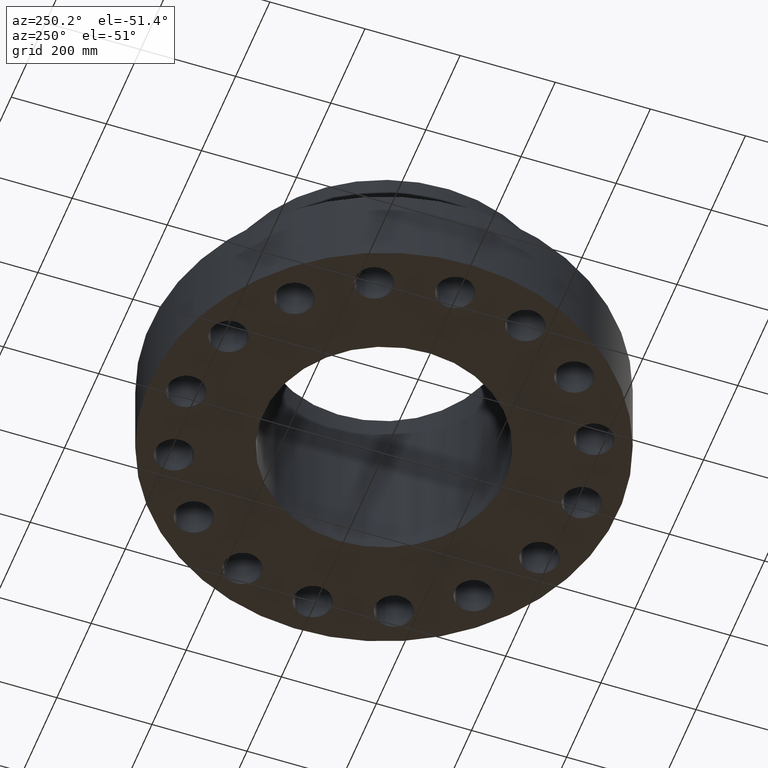
[diagram: clean part render]
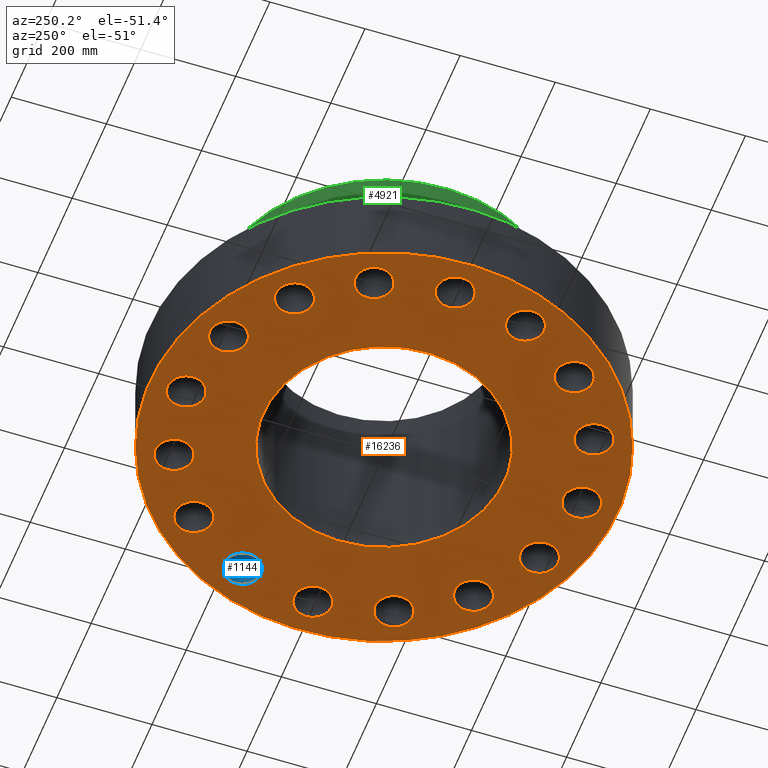
[diagram: same view with three faces highlighted in distinct colors, each labeled with its STEP entity id]
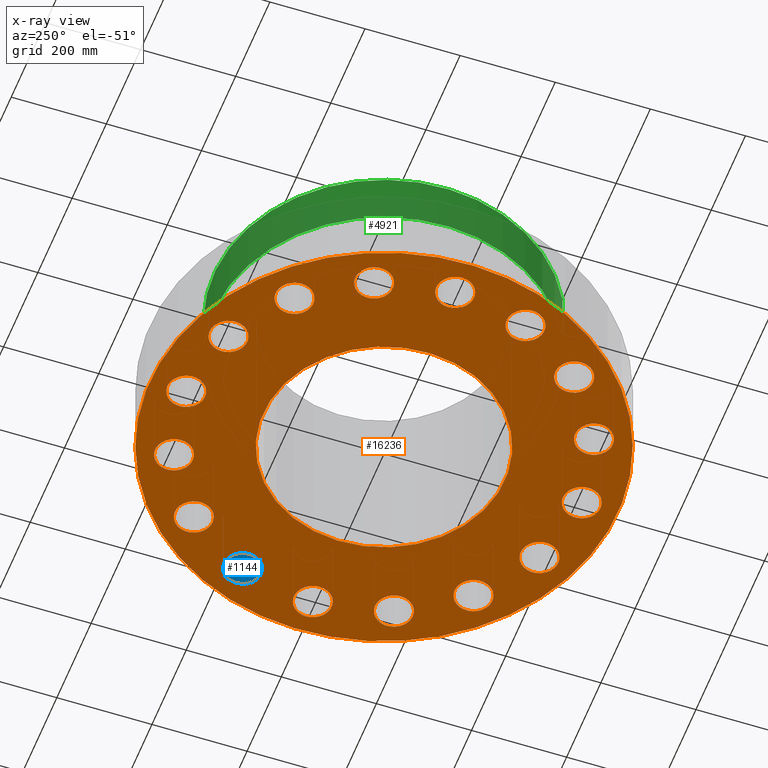
[diagram: x-ray of the same camera — body ghosted, the three highlighted faces saturated]
A machine part, auxiliary view with three faces highlighted in distinct colors.
The next image is the same camera in x-ray (body ghosted, the three faces saturated) — at least one of them is partly hidden behind the body in this view.
Their STEP definitions:

[orange] entity #16236 — the highlighted planar face has unit normal (0, 0, 1).
#65=AXIS2_PLACEMENT_3D('Circle Axis2P3D',#63,#64,$) ;
#82=AXIS2_PLACEMENT_3D('Circle Axis2P3D',#80,#81,$) ;
#433=AXIS2_PLACEMENT_3D('Circle Axis2P3D',#431,#432,$) ;
#459=AXIS2_PLACEMENT_3D('Circle Axis2P3D',#457,#458,$) ;
#533=AXIS2_PLACEMENT_3D('Circle Axis2P3D',#531,#532,$) ;
#545=AXIS2_PLACEMENT_3D('Circle Axis2P3D',#543,#544,$) ;
#576=AXIS2_PLACEMENT_3D('Circle Axis2P3D',#574,#575,$) ;
#588=AXIS2_PLACEMENT_3D('Circle Axis2P3D',#586,#587,$) ;
#619=AXIS2_PLACEMENT_3D('Circle Axis2P3D',#617,#618,$) ;
#631=AXIS2_PLACEMENT_3D('Circle Axis2P3D',#629,#630,$) ;
#662=AXIS2_PLACEMENT_3D('Circle Axis2P3D',#660,#661,$) ;
#674=AXIS2_PLACEMENT_3D('Circle Axis2P3D',#672,#673,$) ;
#705=AXIS2_PLACEMENT_3D('Circle Axis2P3D',#703,#704,$) ;
#717=AXIS2_PLACEMENT_3D('Circle Axis2P3D',#715,#716,$) ;
#748=AXIS2_PLACEMENT_3D('Circle Axis2P3D',#746,#747,$) ;
#760=AXIS2_PLACEMENT_3D('Circle Axis2P3D',#758,#759,$) ;
#791=AXIS2_PLACEMENT_3D('Circle Axis2P3D',#789,#790,$) ;
#803=AXIS2_PLACEMENT_3D('Circle Axis2P3D',#801,#802,$) ;
#834=AXIS2_PLACEMENT_3D('Circle Axis2P3D',#832,#833,$) ;
#846=AXIS2_PLACEMENT_3D('Circle Axis2P3D',#844,#845,$) ;
#877=AXIS2_PLACEMENT_3D('Circle Axis2P3D',#875,#876,$) ;
#889=AXIS2_PLACEMENT_3D('Circle Axis2P3D',#887,#888,$) ;
#920=AXIS2_PLACEMENT_3D('Circle Axis2P3D',#918,#919,$) ;
#932=AXIS2_PLACEMENT_3D('Circle Axis2P3D',#930,#931,$) ;
#963=AXIS2_PLACEMENT_3D('Circle Axis2P3D',#961,#962,$) ;
#975=AXIS2_PLACEMENT_3D('Circle Axis2P3D',#973,#974,$) ;
#1006=AXIS2_PLACEMENT_3D('Circle Axis2P3D',#1004,#1005,$) ;
#1018=AXIS2_PLACEMENT_3D('Circle Axis2P3D',#1016,#1017,$) ;
#1049=AXIS2_PLACEMENT_3D('Circle Axis2P3D',#1047,#1048,$) ;
#1061=AXIS2_PLACEMENT_3D('Circle Axis2P3D',#1059,#1060,$) ;
#1092=AXIS2_PLACEMENT_3D('Circle Axis2P3D',#1090,#1091,$) ;
#1104=AXIS2_PLACEMENT_3D('Circle Axis2P3D',#1102,#1103,$) ;
#1135=AXIS2_PLACEMENT_3D('Circle Axis2P3D',#1133,#1134,$) ;
#1147=AXIS2_PLACEMENT_3D('Circle Axis2P3D',#1145,#1146,$) ;
#16123=AXIS2_PLACEMENT_3D('Circle Axis2P3D',#16121,#16122,$) ;
#16149=AXIS2_PLACEMENT_3D('Circle Axis2P3D',#16147,#16148,$) ;
#16162=AXIS2_PLACEMENT_3D('Plane Axis2P3D',#16159,#16160,#16161) ;
#46=CARTESIAN_POINT('Vertex',(15.0059712035,-0.747903840226,2.2401153548E-016)) ;
#60=CARTESIAN_POINT('Vertex',(17.7440287966,0.747903840226,2.2401153548E-016)) ;
#63=CARTESIAN_POINT('Axis2P3D Location',(16.3750000001,0.,0.)) ;
#80=CARTESIAN_POINT('Axis2P3D Location',(16.3750000001,0.,0.)) ;
#431=CARTESIAN_POINT('Axis2P3D Location',(0.,0.,2.23792987641E-015)) ;
#435=CARTESIAN_POINT('Vertex',(-9.28886981049,-17.0031621367,1.1189649382E-015)) ;
#437=CARTESIAN_POINT('Vertex',(9.28886981049,17.0031621367,1.1189649382E-015)) ;
#457=CARTESIAN_POINT('Axis2P3D Location',(0.,0.,2.23792987641E-015)) ;
#521=CARTESIAN_POINT('Vertex',(13.5774992517,-6.4335096164,2.2401153548E-016)) ;
#528=CARTESIAN_POINT('Vertex',(16.6795554381,-6.0993727936,2.2401153548E-016)) ;
#531=CARTESIAN_POINT('Axis2P3D Location',(15.1285273449,-6.266441205,0.)) ;
#543=CARTESIAN_POINT('Axis2P3D Location',(15.1285273449,-6.266441205,0.)) ;
#564=CARTESIAN_POINT('Vertex',(10.0819761192,-11.1396718734,2.2401153548E-016)) ;
#571=CARTESIAN_POINT('Vertex',(13.0757709648,-12.0180752106,2.2401153548E-016)) ;
#574=CARTESIAN_POINT('Axis2P3D Location',(11.578873542,-11.578873542,0.)) ;
#586=CARTESIAN_POINT('Axis2P3D Location',(11.578873542,-11.578873542,0.)) ;
#607=CARTESIAN_POINT('Vertex',(5.05156351586,-14.149920069,2.2401153548E-016)) ;
#614=CARTESIAN_POINT('Vertex',(7.48131889415,-16.1071346208,2.2401153548E-016)) ;
#617=CARTESIAN_POINT('Axis2P3D Location',(6.266441205,-15.1285273449,0.)) ;
#629=CARTESIAN_POINT('Axis2P3D Location',(6.266441205,-15.1285273449,0.)) ;
#650=CARTESIAN_POINT('Vertex',(-0.747903840226,-15.0059712035,2.2401153548E-016)) ;
#657=CARTESIAN_POINT('Vertex',(0.747903840226,-17.7440287966,2.2401153548E-016)) ;
#660=CARTESIAN_POINT('Axis2P3D Location',(1.00267956681E-015,-16.3750000001,0.)) ;
#672=CARTESIAN_POINT('Axis2P3D Location',(1.00267956681E-015,-16.3750000001,0.)) ;
#693=CARTESIAN_POINT('Vertex',(-6.4335096164,-13.5774992517,2.2401153548E-016)) ;
#700=CARTESIAN_POINT('Vertex',(-6.0993727936,-16.6795554381,2.2401153548E-016)) ;
#703=CARTESIAN_POINT('Axis2P3D Location',(-6.266441205,-15.1285273449,0.)) ;
#715=CARTESIAN_POINT('Axis2P3D Location',(-6.266441205,-15.1285273449,0.)) ;
#736=CARTESIAN_POINT('Vertex',(-11.1396718734,-10.0819761192,2.2401153548E-016)) ;
#743=CARTESIAN_POINT('Vertex',(-12.0180752106,-13.0757709648,2.2401153548E-016)) ;
#746=CARTESIAN_POINT('Axis2P3D Location',(-11.578873542,-11.578873542,0.)) ;
#758=CARTESIAN_POINT('Axis2P3D Location',(-11.578873542,-11.578873542,0.)) ;
#779=CARTESIAN_POINT('Vertex',(-14.149920069,-5.05156351586,2.2401153548E-016)) ;
#786=CARTESIAN_POINT('Vertex',(-16.1071346208,-7.48131889415,2.2401153548E-016)) ;
#789=CARTESIAN_POINT('Axis2P3D Location',(-15.1285273449,-6.266441205,0.)) ;
#801=CARTESIAN_POINT('Axis2P3D Location',(-15.1285273449,-6.266441205,0.)) ;
#822=CARTESIAN_POINT('Vertex',(-15.0059712035,0.747903840226,2.2401153548E-016)) ;
#829=CARTESIAN_POINT('Vertex',(-17.7440287966,-0.747903840226,2.2401153548E-016)) ;
#832=CARTESIAN_POINT('Axis2P3D Location',(-16.3750000001,-2.00535913361E-015,0.)) ;
#844=CARTESIAN_POINT('Axis2P3D Location',(-16.3750000001,-2.00535913361E-015,0.)) ;
#865=CARTESIAN_POINT('Vertex',(-13.5774992517,6.4335096164,2.2401153548E-016)) ;
#872=CARTESIAN_POINT('Vertex',(-16.6795554381,6.0993727936,2.2401153548E-016)) ;
#875=CARTESIAN_POINT('Axis2P3D Location',(-15.1285273449,6.266441205,0.)) ;
#887=CARTESIAN_POINT('Axis2P3D Location',(-15.1285273449,6.266441205,0.)) ;
#908=CARTESIAN_POINT('Vertex',(-10.0819761192,11.1396718734,2.2401153548E-016)) ;
#915=CARTESIAN_POINT('Vertex',(-13.0757709648,12.0180752106,2.2401153548E-016)) ;
#918=CARTESIAN_POINT('Axis2P3D Location',(-11.578873542,11.578873542,0.)) ;
#930=CARTESIAN_POINT('Axis2P3D Location',(-11.578873542,11.578873542,0.)) ;
#951=CARTESIAN_POINT('Vertex',(-5.05156351586,14.149920069,2.2401153548E-016)) ;
#958=CARTESIAN_POINT('Vertex',(-7.48131889415,16.1071346208,2.2401153548E-016)) ;
#961=CARTESIAN_POINT('Axis2P3D Location',(-6.266441205,15.1285273449,0.)) ;
#973=CARTESIAN_POINT('Axis2P3D Location',(-6.266441205,15.1285273449,0.)) ;
#994=CARTESIAN_POINT('Vertex',(0.747903840226,15.0059712035,2.2401153548E-016)) ;
#1001=CARTESIAN_POINT('Vertex',(-0.747903840226,17.7440287966,2.2401153548E-016)) ;
#1004=CARTESIAN_POINT('Axis2P3D Location',(-7.70108824008E-016,16.3750000001,0.)) ;
#1016=CARTESIAN_POINT('Axis2P3D Location',(-7.70108824008E-016,16.3750000001,0.)) ;
#1037=CARTESIAN_POINT('Vertex',(6.4335096164,13.5774992517,2.22372426684E-016)) ;
#1044=CARTESIAN_POINT('Vertex',(6.0993727936,16.6795554381,2.22372426684E-016)) ;
#1047=CARTESIAN_POINT('Axis2P3D Location',(6.266441205,15.1285273449,-3.2782175924E-018)) ;
#1059=CARTESIAN_POINT('Axis2P3D Location',(6.266441205,15.1285273449,-3.2782175924E-018)) ;
#1080=CARTESIAN_POINT('Vertex',(11.1396718734,10.0819761192,2.2401153548E-016)) ;
#1087=CARTESIAN_POINT('Vertex',(12.0180752106,13.0757709648,2.2401153548E-016)) ;
#1090=CARTESIAN_POINT('Axis2P3D Location',(11.578873542,11.578873542,0.)) ;
#1102=CARTESIAN_POINT('Axis2P3D Location',(11.578873542,11.578873542,0.)) ;
#1123=CARTESIAN_POINT('Vertex',(14.149920069,5.05156351586,2.2401153548E-016)) ;
#1130=CARTESIAN_POINT('Vertex',(16.1071346208,7.48131889415,2.2401153548E-016)) ;
#1133=CARTESIAN_POINT('Axis2P3D Location',(15.1285273449,6.266441205,0.)) ;
#1145=CARTESIAN_POINT('Axis2P3D Location',(15.1285273449,6.266441205,0.)) ;
#16121=CARTESIAN_POINT('Axis2P3D Location',(0.,0.,0.)) ;
#16125=CARTESIAN_POINT('Vertex',(-4.79425538606,-8.77582561894,0.)) ;
#16127=CARTESIAN_POINT('Vertex',(4.79425538606,8.77582561894,0.)) ;
#16147=CARTESIAN_POINT('Axis2P3D Location',(0.,0.,0.)) ;
#16159=CARTESIAN_POINT('Axis2P3D Location',(0.,0.,0.)) ;
#64=DIRECTION('Axis2P3D Direction',(0.,-0.,0.0393700787402)) ;
#81=DIRECTION('Axis2P3D Direction',(0.,-0.,0.0393700787402)) ;
#432=DIRECTION('Axis2P3D Direction',(0.,0.,-0.0393700787402)) ;
#458=DIRECTION('Axis2P3D Direction',(0.,0.,-0.0393700787402)) ;
#532=DIRECTION('Axis2P3D Direction',(-0.,0.,0.0393700787402)) ;
#544=DIRECTION('Axis2P3D Direction',(-0.,0.,0.0393700787402)) ;
#575=DIRECTION('Axis2P3D Direction',(-0.,0.,0.0393700787402)) ;
#587=DIRECTION('Axis2P3D Direction',(-0.,0.,0.0393700787402)) ;
#618=DIRECTION('Axis2P3D Direction',(-0.,0.,0.0393700787402)) ;
#630=DIRECTION('Axis2P3D Direction',(-0.,0.,0.0393700787402)) ;
#661=DIRECTION('Axis2P3D Direction',(-0.,0.,0.0393700787402)) ;
#673=DIRECTION('Axis2P3D Direction',(-0.,0.,0.0393700787402)) ;
#704=DIRECTION('Axis2P3D Direction',(0.,0.,0.0393700787402)) ;
#716=DIRECTION('Axis2P3D Direction',(0.,0.,0.0393700787402)) ;
#747=DIRECTION('Axis2P3D Direction',(0.,0.,0.0393700787402)) ;
#759=DIRECTION('Axis2P3D Direction',(0.,0.,0.0393700787402)) ;
#790=DIRECTION('Axis2P3D Direction',(0.,0.,0.0393700787402)) ;
#802=DIRECTION('Axis2P3D Direction',(0.,0.,0.0393700787402)) ;
#833=DIRECTION('Axis2P3D Direction',(0.,0.,0.0393700787402)) ;
#845=DIRECTION('Axis2P3D Direction',(0.,0.,0.0393700787402)) ;
#876=DIRECTION('Axis2P3D Direction',(0.,0.,0.0393700787402)) ;
#888=DIRECTION('Axis2P3D Direction',(0.,0.,0.0393700787402)) ;
#919=DIRECTION('Axis2P3D Direction',(0.,0.,0.0393700787402)) ;
#931=DIRECTION('Axis2P3D Direction',(0.,0.,0.0393700787402)) ;
#962=DIRECTION('Axis2P3D Direction',(0.,0.,0.0393700787402)) ;
#974=DIRECTION('Axis2P3D Direction',(0.,0.,0.0393700787402)) ;
#1005=DIRECTION('Axis2P3D Direction',(0.,0.,0.0393700787402)) ;
#1017=DIRECTION('Axis2P3D Direction',(0.,0.,0.0393700787402)) ;
#1048=DIRECTION('Axis2P3D Direction',(0.,-0.,0.0393700787402)) ;
#1060=DIRECTION('Axis2P3D Direction',(0.,-0.,0.0393700787402)) ;
#1091=DIRECTION('Axis2P3D Direction',(0.,-0.,0.0393700787402)) ;
#1103=DIRECTION('Axis2P3D Direction',(0.,-0.,0.0393700787402)) ;
#1134=DIRECTION('Axis2P3D Direction',(0.,-0.,0.0393700787402)) ;
#1146=DIRECTION('Axis2P3D Direction',(0.,-0.,0.0393700787402)) ;
#16122=DIRECTION('Axis2P3D Direction',(0.,0.,-0.0393700787402)) ;
#16148=DIRECTION('Axis2P3D Direction',(0.,0.,-0.0393700787402)) ;
#16160=DIRECTION('Axis2P3D Direction',(0.,0.,0.0393700787402)) ;
#16161=DIRECTION('Axis2P3D XDirection',(0.0393700787402,0.,0.)) ;
#16165=ORIENTED_EDGE('',*,*,#461,.T.) ;
#16166=ORIENTED_EDGE('',*,*,#439,.T.) ;
#16169=ORIENTED_EDGE('',*,*,#1137,.F.) ;
#16170=ORIENTED_EDGE('',*,*,#1149,.F.) ;
#16173=ORIENTED_EDGE('',*,*,#1094,.F.) ;
#16174=ORIENTED_EDGE('',*,*,#1106,.F.) ;
#16177=ORIENTED_EDGE('',*,*,#1051,.F.) ;
#16178=ORIENTED_EDGE('',*,*,#1063,.F.) ;
#16181=ORIENTED_EDGE('',*,*,#1008,.F.) ;
#16182=ORIENTED_EDGE('',*,*,#1020,.F.) ;
#16185=ORIENTED_EDGE('',*,*,#965,.F.) ;
#16186=ORIENTED_EDGE('',*,*,#977,.F.) ;
#16189=ORIENTED_EDGE('',*,*,#922,.F.) ;
#16190=ORIENTED_EDGE('',*,*,#934,.F.) ;
#16193=ORIENTED_EDGE('',*,*,#879,.F.) ;
#16194=ORIENTED_EDGE('',*,*,#891,.F.) ;
#16197=ORIENTED_EDGE('',*,*,#836,.F.) ;
#16198=ORIENTED_EDGE('',*,*,#848,.F.) ;
#16201=ORIENTED_EDGE('',*,*,#793,.F.) ;
#16202=ORIENTED_EDGE('',*,*,#805,.F.) ;
#16205=ORIENTED_EDGE('',*,*,#750,.F.) ;
#16206=ORIENTED_EDGE('',*,*,#762,.F.) ;
#16209=ORIENTED_EDGE('',*,*,#707,.F.) ;
#16210=ORIENTED_EDGE('',*,*,#719,.F.) ;
#16213=ORIENTED_EDGE('',*,*,#664,.F.) ;
#16214=ORIENTED_EDGE('',*,*,#676,.F.) ;
#16217=ORIENTED_EDGE('',*,*,#621,.F.) ;
#16218=ORIENTED_EDGE('',*,*,#633,.F.) ;
#16221=ORIENTED_EDGE('',*,*,#578,.F.) ;
#16222=ORIENTED_EDGE('',*,*,#590,.F.) ;
#16225=ORIENTED_EDGE('',*,*,#535,.F.) ;
#16226=ORIENTED_EDGE('',*,*,#547,.F.) ;
#16229=ORIENTED_EDGE('',*,*,#84,.F.) ;
#16230=ORIENTED_EDGE('',*,*,#67,.F.) ;
#16233=ORIENTED_EDGE('',*,*,#16151,.T.) ;
#16234=ORIENTED_EDGE('',*,*,#16129,.T.) ;
#16171=FACE_BOUND('',#16168,.T.) ;
#16175=FACE_BOUND('',#16172,.T.) ;
#16179=FACE_BOUND('',#16176,.T.) ;
#16183=FACE_BOUND('',#16180,.T.) ;
#16187=FACE_BOUND('',#16184,.T.) ;
#16191=FACE_BOUND('',#16188,.T.) ;
#16195=FACE_BOUND('',#16192,.T.) ;
#16199=FACE_BOUND('',#16196,.T.) ;
#16203=FACE_BOUND('',#16200,.T.) ;
#16207=FACE_BOUND('',#16204,.T.) ;
#16211=FACE_BOUND('',#16208,.T.) ;
#16215=FACE_BOUND('',#16212,.T.) ;
#16219=FACE_BOUND('',#16216,.T.) ;
#16223=FACE_BOUND('',#16220,.T.) ;
#16227=FACE_BOUND('',#16224,.T.) ;
#16231=FACE_BOUND('',#16228,.T.) ;
#16235=FACE_BOUND('',#16232,.T.) ;
#16236=ADVANCED_FACE('PartBody',(#16167,#16171,#16175,#16179,#16183,#16187,#16191,#16195,#16199,#16203,#16207,#16211,#16215,#16219,#16223,#16227,#16231,#16235),#16163,.F.) ;
#66=CIRCLE('generated circle',#65,1.56000000001) ;
#83=CIRCLE('generated circle',#82,1.56000000001) ;
#434=CIRCLE('generated circle',#433,19.3750000001) ;
#460=CIRCLE('generated circle',#459,19.3750000001) ;
#534=CIRCLE('generated circle',#533,1.56000000001) ;
#546=CIRCLE('generated circle',#545,1.56000000001) ;
#577=CIRCLE('generated circle',#576,1.56000000001) ;
#589=CIRCLE('generated circle',#588,1.56000000001) ;
#620=CIRCLE('generated circle',#619,1.56000000001) ;
#632=CIRCLE('generated circle',#631,1.56000000001) ;
#663=CIRCLE('generated circle',#662,1.56000000001) ;
#675=CIRCLE('generated circle',#674,1.56000000001) ;
#706=CIRCLE('generated circle',#705,1.56000000001) ;
#718=CIRCLE('generated circle',#717,1.56000000001) ;
#749=CIRCLE('generated circle',#748,1.56000000001) ;
#761=CIRCLE('generated circle',#760,1.56000000001) ;
#792=CIRCLE('generated circle',#791,1.56000000001) ;
#804=CIRCLE('generated circle',#803,1.56000000001) ;
#835=CIRCLE('generated circle',#834,1.56000000001) ;
#847=CIRCLE('generated circle',#846,1.56000000001) ;
#878=CIRCLE('generated circle',#877,1.56000000001) ;
#890=CIRCLE('generated circle',#889,1.56000000001) ;
#921=CIRCLE('generated circle',#920,1.56000000001) ;
#933=CIRCLE('generated circle',#932,1.56000000001) ;
#964=CIRCLE('generated circle',#963,1.56000000001) ;
#976=CIRCLE('generated circle',#975,1.56000000001) ;
#1007=CIRCLE('generated circle',#1006,1.56000000001) ;
#1019=CIRCLE('generated circle',#1018,1.56000000001) ;
#1050=CIRCLE('generated circle',#1049,1.56000000001) ;
#1062=CIRCLE('generated circle',#1061,1.56000000001) ;
#1093=CIRCLE('generated circle',#1092,1.56000000001) ;
#1105=CIRCLE('generated circle',#1104,1.56000000001) ;
#1136=CIRCLE('generated circle',#1135,1.56000000001) ;
#1148=CIRCLE('generated circle',#1147,1.56000000001) ;
#16124=CIRCLE('generated circle',#16123,10.) ;
#16150=CIRCLE('generated circle',#16149,10.) ;
#67=EDGE_CURVE('',#61,#47,#66,.F.) ;
#84=EDGE_CURVE('',#47,#61,#83,.F.) ;
#439=EDGE_CURVE('',#436,#438,#434,.T.) ;
#461=EDGE_CURVE('',#438,#436,#460,.T.) ;
#535=EDGE_CURVE('',#529,#522,#534,.F.) ;
#547=EDGE_CURVE('',#522,#529,#546,.F.) ;
#578=EDGE_CURVE('',#572,#565,#577,.F.) ;
#590=EDGE_CURVE('',#565,#572,#589,.F.) ;
#621=EDGE_CURVE('',#615,#608,#620,.F.) ;
#633=EDGE_CURVE('',#608,#615,#632,.F.) ;
#664=EDGE_CURVE('',#658,#651,#663,.F.) ;
#676=EDGE_CURVE('',#651,#658,#675,.F.) ;
#707=EDGE_CURVE('',#701,#694,#706,.F.) ;
#719=EDGE_CURVE('',#694,#701,#718,.F.) ;
#750=EDGE_CURVE('',#744,#737,#749,.F.) ;
#762=EDGE_CURVE('',#737,#744,#761,.F.) ;
#793=EDGE_CURVE('',#787,#780,#792,.F.) ;
#805=EDGE_CURVE('',#780,#787,#804,.F.) ;
#836=EDGE_CURVE('',#830,#823,#835,.F.) ;
#848=EDGE_CURVE('',#823,#830,#847,.F.) ;
#879=EDGE_CURVE('',#873,#866,#878,.F.) ;
#891=EDGE_CURVE('',#866,#873,#890,.F.) ;
#922=EDGE_CURVE('',#916,#909,#921,.F.) ;
#934=EDGE_CURVE('',#909,#916,#933,.F.) ;
#965=EDGE_CURVE('',#959,#952,#964,.F.) ;
#977=EDGE_CURVE('',#952,#959,#976,.F.) ;
#1008=EDGE_CURVE('',#1002,#995,#1007,.F.) ;
#1020=EDGE_CURVE('',#995,#1002,#1019,.F.) ;
#1051=EDGE_CURVE('',#1045,#1038,#1050,.F.) ;
#1063=EDGE_CURVE('',#1038,#1045,#1062,.F.) ;
#1094=EDGE_CURVE('',#1088,#1081,#1093,.F.) ;
#1106=EDGE_CURVE('',#1081,#1088,#1105,.F.) ;
#1137=EDGE_CURVE('',#1131,#1124,#1136,.F.) ;
#1149=EDGE_CURVE('',#1124,#1131,#1148,.F.) ;
#16129=EDGE_CURVE('',#16126,#16128,#16124,.F.) ;
#16151=EDGE_CURVE('',#16128,#16126,#16150,.F.) ;
#16164=EDGE_LOOP('',(#16165,#16166)) ;
#16168=EDGE_LOOP('',(#16169,#16170)) ;
#16172=EDGE_LOOP('',(#16173,#16174)) ;
#16176=EDGE_LOOP('',(#16177,#16178)) ;
#16180=EDGE_LOOP('',(#16181,#16182)) ;
#16184=EDGE_LOOP('',(#16185,#16186)) ;
#16188=EDGE_LOOP('',(#16189,#16190)) ;
#16192=EDGE_LOOP('',(#16193,#16194)) ;
#16196=EDGE_LOOP('',(#16197,#16198)) ;
#16200=EDGE_LOOP('',(#16201,#16202)) ;
#16204=EDGE_LOOP('',(#16205,#16206)) ;
#16208=EDGE_LOOP('',(#16209,#16210)) ;
#16212=EDGE_LOOP('',(#16213,#16214)) ;
#16216=EDGE_LOOP('',(#16217,#16218)) ;
#16220=EDGE_LOOP('',(#16221,#16222)) ;
#16224=EDGE_LOOP('',(#16225,#16226)) ;
#16228=EDGE_LOOP('',(#16229,#16230)) ;
#16232=EDGE_LOOP('',(#16233,#16234)) ;
#16167=FACE_OUTER_BOUND('',#16164,.T.) ;
#16163=PLANE('',#16162) ;
#47=VERTEX_POINT('',#46) ;
#61=VERTEX_POINT('',#60) ;
#436=VERTEX_POINT('',#435) ;
#438=VERTEX_POINT('',#437) ;
#522=VERTEX_POINT('',#521) ;
#529=VERTEX_POINT('',#528) ;
#565=VERTEX_POINT('',#564) ;
#572=VERTEX_POINT('',#571) ;
#608=VERTEX_POINT('',#607) ;
#615=VERTEX_POINT('',#614) ;
#651=VERTEX_POINT('',#650) ;
#658=VERTEX_POINT('',#657) ;
#694=VERTEX_POINT('',#693) ;
#701=VERTEX_POINT('',#700) ;
#737=VERTEX_POINT('',#736) ;
#744=VERTEX_POINT('',#743) ;
#780=VERTEX_POINT('',#779) ;
#787=VERTEX_POINT('',#786) ;
#823=VERTEX_POINT('',#822) ;
#830=VERTEX_POINT('',#829) ;
#866=VERTEX_POINT('',#865) ;
#873=VERTEX_POINT('',#872) ;
#909=VERTEX_POINT('',#908) ;
#916=VERTEX_POINT('',#915) ;
#952=VERTEX_POINT('',#951) ;
#959=VERTEX_POINT('',#958) ;
#995=VERTEX_POINT('',#994) ;
#1002=VERTEX_POINT('',#1001) ;
#1038=VERTEX_POINT('',#1037) ;
#1045=VERTEX_POINT('',#1044) ;
#1081=VERTEX_POINT('',#1080) ;
#1088=VERTEX_POINT('',#1087) ;
#1124=VERTEX_POINT('',#1123) ;
#1131=VERTEX_POINT('',#1130) ;
#16126=VERTEX_POINT('',#16125) ;
#16128=VERTEX_POINT('',#16127) ;

[blue] entity #1144 — the highlighted cylindrical surface (edge-blend (fillet) strip) has radius 39.624 mm, axis along (0, -0, 1).
#400=AXIS2_PLACEMENT_3D('Circle Axis2P3D',#398,#399,$) ;
#1117=AXIS2_PLACEMENT_3D('Cylinder Axis2P3D',#1114,#1115,#1116) ;
#1135=AXIS2_PLACEMENT_3D('Circle Axis2P3D',#1133,#1134,$) ;
#393=CARTESIAN_POINT('Vertex',(14.149920069,5.05156351586,7.00000000003)) ;
#395=CARTESIAN_POINT('Vertex',(16.1071346208,7.48131889415,7.00000000003)) ;
#398=CARTESIAN_POINT('Axis2P3D Location',(15.1285273449,6.266441205,7.00000000003)) ;
#1114=CARTESIAN_POINT('Axis2P3D Location',(15.1285273449,6.266441205,0.00393700787402)) ;
#1119=CARTESIAN_POINT('Line Origine',(14.149920069,5.05156351586,3.50000000001)) ;
#1123=CARTESIAN_POINT('Vertex',(14.149920069,5.05156351586,2.2401153548E-016)) ;
#1126=CARTESIAN_POINT('Line Origine',(16.1071346208,7.48131889415,3.50000000001)) ;
#1130=CARTESIAN_POINT('Vertex',(16.1071346208,7.48131889415,2.2401153548E-016)) ;
#1133=CARTESIAN_POINT('Axis2P3D Location',(15.1285273449,6.266441205,0.)) ;
#399=DIRECTION('Axis2P3D Direction',(0.,0.,-0.0393700787402)) ;
#1115=DIRECTION('Axis2P3D Direction',(0.,-0.,0.0393700787402)) ;
#1116=DIRECTION('Axis2P3D XDirection',(0.0246973368639,0.030660147616,0.)) ;
#1120=DIRECTION('Vector Direction',(0.,0.,0.0393700787402)) ;
#1127=DIRECTION('Vector Direction',(0.,0.,0.0393700787402)) ;
#1134=DIRECTION('Axis2P3D Direction',(0.,-0.,0.0393700787402)) ;
#1121=VECTOR('Line Direction',#1120,0.0393700787402) ;
#1128=VECTOR('Line Direction',#1127,0.0393700787402) ;
#1139=ORIENTED_EDGE('',*,*,#1125,.F.) ;
#1140=ORIENTED_EDGE('',*,*,#402,.F.) ;
#1141=ORIENTED_EDGE('',*,*,#1132,.T.) ;
#1142=ORIENTED_EDGE('',*,*,#1137,.T.) ;
#1144=ADVANCED_FACE('PartBody',(#1143),#1118,.F.) ;
#401=CIRCLE('generated circle',#400,1.56000000001) ;
#1136=CIRCLE('generated circle',#1135,1.56000000001) ;
#1118=CYLINDRICAL_SURFACE('generated cylinder',#1117,1.56000000001) ;
#402=EDGE_CURVE('',#396,#394,#401,.T.) ;
#1125=EDGE_CURVE('',#394,#1124,#1122,.F.) ;
#1132=EDGE_CURVE('',#396,#1131,#1129,.F.) ;
#1137=EDGE_CURVE('',#1131,#1124,#1136,.F.) ;
#1138=EDGE_LOOP('',(#1139,#1140,#1141,#1142)) ;
#1143=FACE_OUTER_BOUND('',#1138,.T.) ;
#1122=LINE('Line',#1119,#1121) ;
#1129=LINE('Line',#1126,#1128) ;
#394=VERTEX_POINT('',#393) ;
#396=VERTEX_POINT('',#395) ;
#1124=VERTEX_POINT('',#1123) ;
#1131=VERTEX_POINT('',#1130) ;

[green] entity #4921 — the highlighted cylindrical surface (partial cylindrical patch) has radius 357.124 mm, axis along (0, 0, -1).
#2026=AXIS2_PLACEMENT_3D('Circle Axis2P3D',#2024,#2025,$) ;
#4882=AXIS2_PLACEMENT_3D('Cylinder Axis2P3D',#4879,#4880,#4881) ;
#4912=AXIS2_PLACEMENT_3D('Circle Axis2P3D',#4910,#4911,$) ;
#2002=CARTESIAN_POINT('Vertex',(6.7407230728,12.3388108202,11.0784976363)) ;
#2009=CARTESIAN_POINT('Vertex',(-6.7407230728,-12.3388108202,11.0784976363)) ;
#2024=CARTESIAN_POINT('Axis2P3D Location',(0.,0.,11.0784976363)) ;
#4879=CARTESIAN_POINT('Axis2P3D Location',(0.,0.,7.75000000003)) ;
#4884=CARTESIAN_POINT('Line Origine',(6.7407230728,12.3388108202,13.4142488182)) ;
#4888=CARTESIAN_POINT('Vertex',(6.7407230728,12.3388108202,15.7500000001)) ;
#4895=CARTESIAN_POINT('Vertex',(-6.7407230728,-12.3388108202,15.7500000001)) ;
#4898=CARTESIAN_POINT('Line Origine',(-6.7407230728,-12.3388108202,13.4142488182)) ;
#4910=CARTESIAN_POINT('Axis2P3D Location',(0.,0.,15.7500000001)) ;
#2025=DIRECTION('Axis2P3D Direction',(-0.,0.,0.0393700787402)) ;
#4880=DIRECTION('Axis2P3D Direction',(0.,0.,-0.0393700787402)) ;
#4881=DIRECTION('Axis2P3D XDirection',(-0.0188750212049,-0.0345504945626,0.)) ;
#4885=DIRECTION('Vector Direction',(0.,0.,-0.0393700787402)) ;
#4899=DIRECTION('Vector Direction',(0.,0.,-0.0393700787402)) ;
#4911=DIRECTION('Axis2P3D Direction',(0.,0.,-0.0393700787402)) ;
#4886=VECTOR('Line Direction',#4885,0.0393700787402) ;
#4900=VECTOR('Line Direction',#4899,0.0393700787402) ;
#4916=ORIENTED_EDGE('',*,*,#2028,.F.) ;
#4917=ORIENTED_EDGE('',*,*,#4902,.T.) ;
#4918=ORIENTED_EDGE('',*,*,#4914,.T.) ;
#4919=ORIENTED_EDGE('',*,*,#4890,.F.) ;
#4921=ADVANCED_FACE('PartBody',(#4920),#4883,.T.) ;
#2027=CIRCLE('generated circle',#2026,14.0600000001) ;
#4913=CIRCLE('generated circle',#4912,14.0600000001) ;
#4883=CYLINDRICAL_SURFACE('generated cylinder',#4882,14.0600000001) ;
#2028=EDGE_CURVE('',#2010,#2003,#2027,.F.) ;
#4890=EDGE_CURVE('',#2003,#4889,#4887,.F.) ;
#4902=EDGE_CURVE('',#2010,#4896,#4901,.F.) ;
#4914=EDGE_CURVE('',#4896,#4889,#4913,.T.) ;
#4915=EDGE_LOOP('',(#4916,#4917,#4918,#4919)) ;
#4920=FACE_OUTER_BOUND('',#4915,.T.) ;
#4887=LINE('Line',#4884,#4886) ;
#4901=LINE('Line',#4898,#4900) ;
#2003=VERTEX_POINT('',#2002) ;
#2010=VERTEX_POINT('',#2009) ;
#4889=VERTEX_POINT('',#4888) ;
#4896=VERTEX_POINT('',#4895) ;